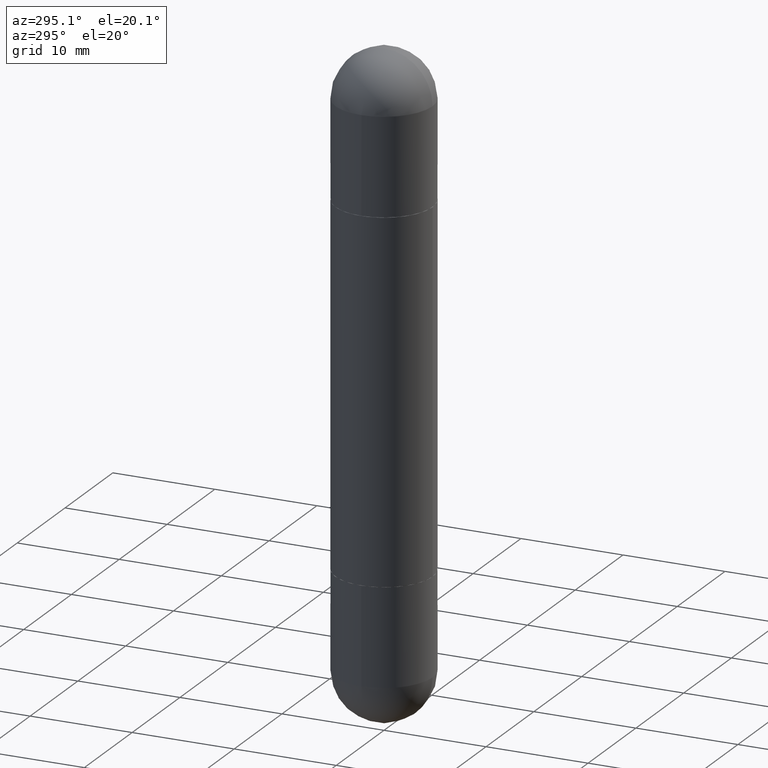
[diagram: clean part render]
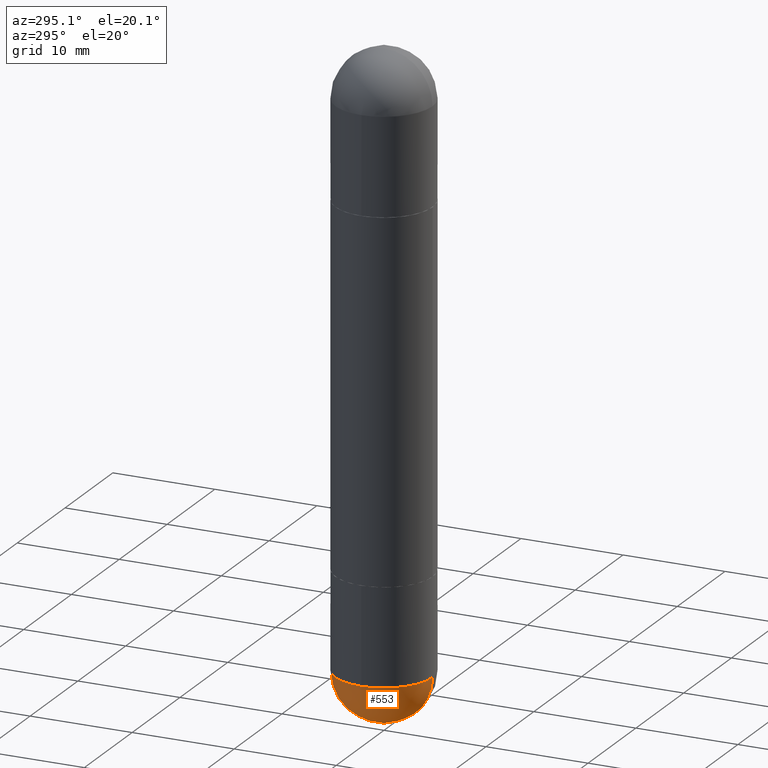
[diagram: same view with one face highlighted and labeled with its STEP entity id]
A machine part, auxiliary view. The second image highlights one B-rep face of the part: STEP entity #553.
In plain terms, the highlighted spherical surface has radius 4.7625 mm.
Its self-contained STEP definition (entity closure, byte-faithful):
#40 = CIRCLE ( 'NONE', #230, 0.1875000000000000555 ) ;
#63 = AXIS2_PLACEMENT_3D ( 'NONE', #486, #419, #167 ) ;
#69 = VERTEX_POINT ( 'NONE', #80 ) ;
#80 = CARTESIAN_POINT ( 'NONE',  ( 5.790569421510013204E-29, -9.191404651505909607E-15, -2.500000000000000000 ) ) ;
#118 = DIRECTION ( 'NONE',  ( 1.000000000000000000, -6.982962677686265922E-15, 4.883557194083112340E-29 ) ) ;
#143 = VERTEX_POINT ( 'NONE', #606 ) ;
#167 = DIRECTION ( 'NONE',  ( 6.982962677686266711E-15, 1.000000000000000000, -2.913971193241875639E-15 ) ) ;
#174 = CARTESIAN_POINT ( 'NONE',  ( 5.324026836389243254E-29, -8.548232964214825368E-15, -2.312500000000000000 ) ) ;
#189 = CIRCLE ( 'NONE', #434, 0.1875000000000000555 ) ;
#211 = AXIS2_PLACEMENT_3D ( 'NONE', #174, #118, #243 ) ;
#215 = EDGE_CURVE ( 'NONE', #69, #341, #342, .T. ) ;
#219 = CARTESIAN_POINT ( 'NONE',  ( -1.332267629550134009E-15, -0.1875000000000084932, -2.312499999999999556 ) ) ;
#230 = AXIS2_PLACEMENT_3D ( 'NONE', #300, #666, #543 ) ;
#235 = CARTESIAN_POINT ( 'NONE',  ( 1.309305502066231017E-15, 0.1874999999999918954, -2.312500000000000444 ) ) ;
#243 = DIRECTION ( 'NONE',  ( 6.982962677686265922E-15, 1.000000000000000000, 0.000000000000000000 ) ) ;
#253 = ORIENTED_EDGE ( 'NONE', *, *, #336, .F. ) ;
#276 = EDGE_CURVE ( 'NONE', #341, #143, #189, .T. ) ;
#300 = CARTESIAN_POINT ( 'NONE',  ( 5.655146614303128380E-29, -8.074050596074775072E-15, -2.312500000000000000 ) ) ;
#336 = EDGE_CURVE ( 'NONE', #143, #499, #40, .T. ) ;
#341 = VERTEX_POINT ( 'NONE', #235 ) ;
#342 = CIRCLE ( 'NONE', #211, 0.1875000000000003331 ) ;
#361 = DIRECTION ( 'NONE',  ( 1.000000000000000000, -6.982962677686270655E-15, 0.000000000000000000 ) ) ;
#384 = ORIENTED_EDGE ( 'NONE', *, *, #655, .T. ) ;
#392 = DIRECTION ( 'NONE',  ( -1.000000000000000000, 7.105427357601001070E-15, -4.926315508542082329E-29 ) ) ;
#406 = CARTESIAN_POINT ( 'NONE',  ( 5.324026836389243254E-29, -8.548232964214825368E-15, -2.312500000000000000 ) ) ;
#418 = CARTESIAN_POINT ( 'NONE',  ( 5.655146614303128380E-29, -8.074050596074775072E-15, -2.312500000000000000 ) ) ;
#419 = DIRECTION ( 'NONE',  ( -1.000000000000000000, 6.982962677686266711E-15, -4.883557194083113462E-29 ) ) ;
#420 = EDGE_LOOP ( 'NONE', ( #766, #384, #253, #628 ) ) ;
#434 = AXIS2_PLACEMENT_3D ( 'NONE', #418, #728, #361 ) ;
#477 = FACE_OUTER_BOUND ( 'NONE', #420, .T. ) ;
#486 = CARTESIAN_POINT ( 'NONE',  ( 5.324026836389243254E-29, -8.548232964214825368E-15, -2.312500000000000000 ) ) ;
#499 = VERTEX_POINT ( 'NONE', #219 ) ;
#543 = DIRECTION ( 'NONE',  ( 1.000000000000000000, -6.982962677686270655E-15, 0.000000000000000000 ) ) ;
#553 = ADVANCED_FACE ( 'NONE', ( #477 ), #602, .T. ) ;
#578 = CIRCLE ( 'NONE', #772, 0.1875000000000003331 ) ;
#602 = SPHERICAL_SURFACE ( 'NONE', #63, 0.1875000000000003331 ) ;
#606 = CARTESIAN_POINT ( 'NONE',  ( -0.1875000000000000555, -6.088003085826207710E-15, -2.312500000000000000 ) ) ;
#628 = ORIENTED_EDGE ( 'NONE', *, *, #276, .F. ) ;
#655 = EDGE_CURVE ( 'NONE', #69, #499, #578, .T. ) ;
#666 = DIRECTION ( 'NONE',  ( -2.445468806185136597E-29, 3.491481338843145583E-15, 1.000000000000000000 ) ) ;
#726 = DIRECTION ( 'NONE',  ( -7.105427357600999492E-15, -1.000000000000000000, 0.000000000000000000 ) ) ;
#728 = DIRECTION ( 'NONE',  ( -2.445468806185136597E-29, 3.491481338843145583E-15, 1.000000000000000000 ) ) ;
#766 = ORIENTED_EDGE ( 'NONE', *, *, #215, .F. ) ;
#772 = AXIS2_PLACEMENT_3D ( 'NONE', #406, #392, #726 ) ;